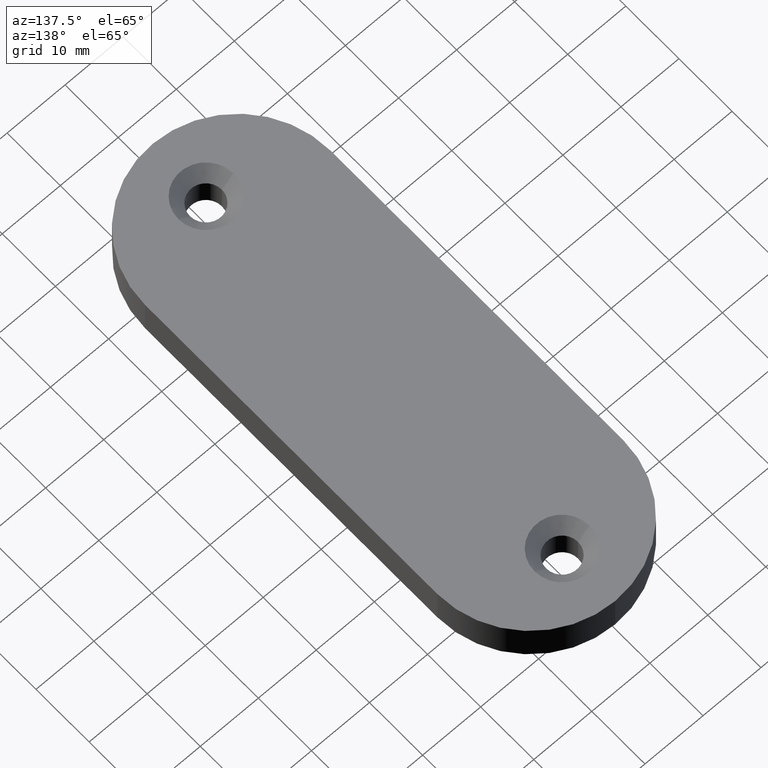
[diagram: clean part render]
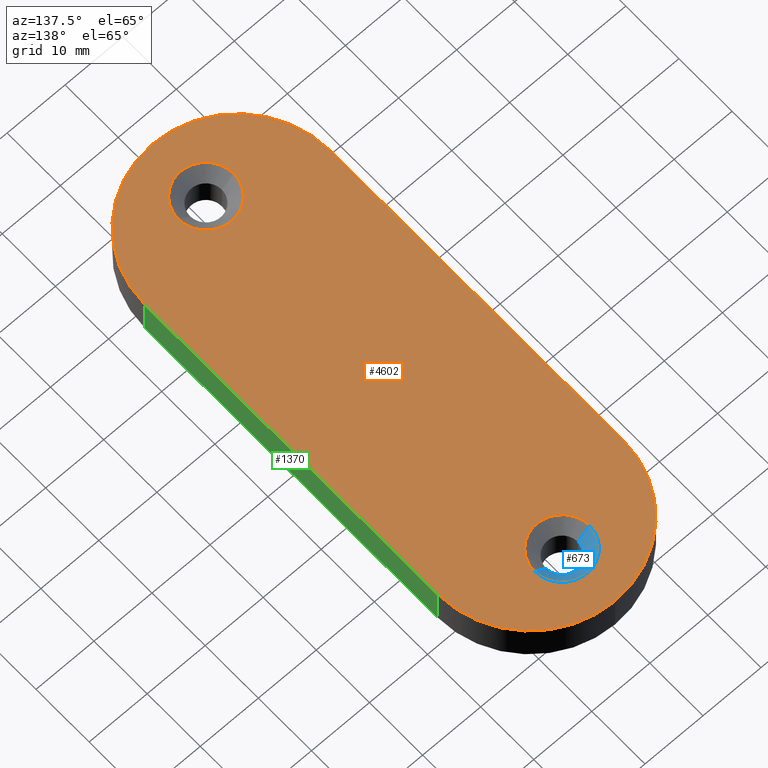
[diagram: same view with three faces highlighted in distinct colors, each labeled with its STEP entity id]
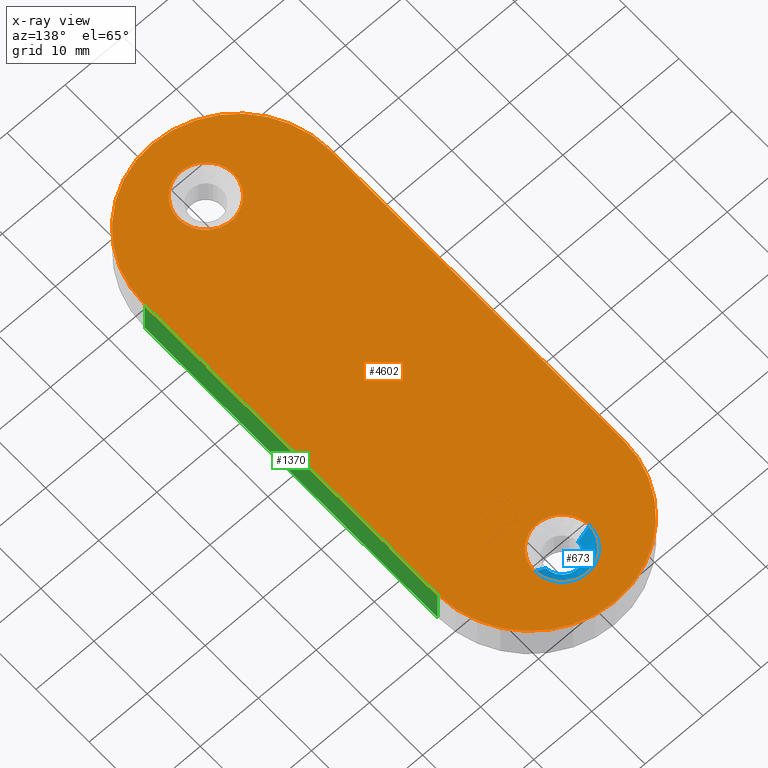
[diagram: x-ray of the same camera — body ghosted, the three highlighted faces saturated]
A machine part, auxiliary view with three faces highlighted in distinct colors.
The next image is the same camera in x-ray (body ghosted, the three faces saturated) — at least one of them is partly hidden behind the body in this view.
Their STEP definitions:

[orange] entity #4602 — the highlighted planar face has unit normal (0, 0, 1).
#166 = DIRECTION ( 'NONE',  ( 1.000000000000000000, 0.000000000000000000, 0.000000000000000000 ) ) ;
#169 = DIRECTION ( 'NONE',  ( 0.000000000000000000, -0.000000000000000000, -1.000000000000000000 ) ) ;
#346 = VERTEX_POINT ( 'NONE', #7509 ) ;
#498 = DIRECTION ( 'NONE',  ( -0.000000000000000000, 0.000000000000000000, 1.000000000000000000 ) ) ;
#519 = VERTEX_POINT ( 'NONE', #10348 ) ;
#570 = DIRECTION ( 'NONE',  ( 0.000000000000000000, -0.000000000000000000, -1.000000000000000000 ) ) ;
#654 = DIRECTION ( 'NONE',  ( 1.000000000000000000, 0.000000000000000000, 0.000000000000000000 ) ) ;
#742 = EDGE_LOOP ( 'NONE', ( #3831, #6364, #8016, #6945, #6531, #7832 ) ) ;
#858 = PLANE ( 'NONE',  #7722 ) ;
#947 = DIRECTION ( 'NONE',  ( -0.000000000000000000, 0.000000000000000000, 1.000000000000000000 ) ) ;
#1322 = VERTEX_POINT ( 'NONE', #9553 ) ;
#1451 = CARTESIAN_POINT ( 'NONE',  ( 0.000000000000000000, -27.50000000000000355, 7.000000000000000000 ) ) ;
#1484 = CARTESIAN_POINT ( 'NONE',  ( 0.000000000000000000, 0.000000000000000000, 7.000000000000000000 ) ) ;
#1599 = VERTEX_POINT ( 'NONE', #3601 ) ;
#1646 = DIRECTION ( 'NONE',  ( 0.000000000000000000, -0.000000000000000000, -1.000000000000000000 ) ) ;
#1888 = CARTESIAN_POINT ( 'NONE',  ( 0.000000000000000000, -33.50000000000000000, 7.000000000000000000 ) ) ;
#2055 = CIRCLE ( 'NONE', #9089, 16.00000000000000000 ) ;
#2238 = CARTESIAN_POINT ( 'NONE',  ( 15.99999999999999645, 27.49999999999999289, 7.000000000000000000 ) ) ;
#2461 = CARTESIAN_POINT ( 'NONE',  ( 0.000000000000000000, -33.50000000000000000, 7.000000000000000000 ) ) ;
#2490 = AXIS2_PLACEMENT_3D ( 'NONE', #2461, #1646, #8163 ) ;
#2692 = EDGE_CURVE ( 'NONE', #8049, #8827, #4928, .T. ) ;
#2862 = CARTESIAN_POINT ( 'NONE',  ( 4.750000000000031974, -33.50000000000000000, 7.000000000000000000 ) ) ;
#3030 = AXIS2_PLACEMENT_3D ( 'NONE', #9161, #947, #166 ) ;
#3044 = VERTEX_POINT ( 'NONE', #3549 ) ;
#3150 = ORIENTED_EDGE ( 'NONE', *, *, #7385, .T. ) ;
#3226 = CIRCLE ( 'NONE', #9875, 4.750000000000031974 ) ;
#3375 = CIRCLE ( 'NONE', #7472, 4.750000000000031974 ) ;
#3399 = ORIENTED_EDGE ( 'NONE', *, *, #6523, .T. ) ;
#3475 = CARTESIAN_POINT ( 'NONE',  ( -16.00000000000000711, 43.49999999999999289, 7.000000000000000000 ) ) ;
#3549 = CARTESIAN_POINT ( 'NONE',  ( -4.750000000000031974, -33.50000000000000000, 7.000000000000000000 ) ) ;
#3601 = CARTESIAN_POINT ( 'NONE',  ( 4.750000000000031974, 33.50000000000000000, 7.000000000000000000 ) ) ;
#3720 = DIRECTION ( 'NONE',  ( 1.000000000000000000, 0.000000000000000000, 0.000000000000000000 ) ) ;
#3831 = ORIENTED_EDGE ( 'NONE', *, *, #7177, .T. ) ;
#3858 = EDGE_LOOP ( 'NONE', ( #6059, #3399 ) ) ;
#3927 = CIRCLE ( 'NONE', #3030, 16.00000000000000000 ) ;
#3934 = ORIENTED_EDGE ( 'NONE', *, *, #4562, .T. ) ;
#4102 = CIRCLE ( 'NONE', #10196, 16.00000000000000000 ) ;
#4131 = CARTESIAN_POINT ( 'NONE',  ( 16.00000000000000355, -27.50000000000000355, 7.000000000000000000 ) ) ;
#4314 = CARTESIAN_POINT ( 'NONE',  ( -5.024716275243164806E-15, 27.49999999999998934, 7.000000000000000000 ) ) ;
#4347 = VECTOR ( 'NONE', #9793, 1000.000000000000000 ) ;
#4562 = EDGE_CURVE ( 'NONE', #6685, #3044, #4773, .T. ) ;
#4602 = ADVANCED_FACE ( 'NONE', ( #9396, #6462, #9158 ), #858, .T. ) ;
#4611 = CARTESIAN_POINT ( 'NONE',  ( 0.000000000000000000, 33.50000000000000000, 7.000000000000000000 ) ) ;
#4773 = CIRCLE ( 'NONE', #2490, 4.750000000000031974 ) ;
#4928 = LINE ( 'NONE', #6103, #5317 ) ;
#5037 = CARTESIAN_POINT ( 'NONE',  ( 0.000000000000000000, 33.50000000000000000, 7.000000000000000000 ) ) ;
#5317 = VECTOR ( 'NONE', #9251, 1000.000000000000000 ) ;
#5413 = CARTESIAN_POINT ( 'NONE',  ( 4.386657065688479052E-15, -27.50000000000000355, 7.000000000000000000 ) ) ;
#5511 = CARTESIAN_POINT ( 'NONE',  ( -16.00000000000000000, -27.50000000000000355, 7.000000000000000000 ) ) ;
#5541 = VERTEX_POINT ( 'NONE', #10291 ) ;
#5550 = EDGE_CURVE ( 'NONE', #1599, #5541, #7576, .T. ) ;
#6059 = ORIENTED_EDGE ( 'NONE', *, *, #5550, .T. ) ;
#6103 = CARTESIAN_POINT ( 'NONE',  ( 15.99999999999999289, 43.49999999999999289, 7.000000000000000000 ) ) ;
#6280 = DIRECTION ( 'NONE',  ( 1.000000000000000000, 0.000000000000000000, 0.000000000000000000 ) ) ;
#6364 = ORIENTED_EDGE ( 'NONE', *, *, #8815, .T. ) ;
#6462 = FACE_BOUND ( 'NONE', #10486, .T. ) ;
#6523 = EDGE_CURVE ( 'NONE', #5541, #1599, #3375, .T. ) ;
#6531 = ORIENTED_EDGE ( 'NONE', *, *, #10244, .T. ) ;
#6685 = VERTEX_POINT ( 'NONE', #2862 ) ;
#6698 = DIRECTION ( 'NONE',  ( 1.000000000000000000, 0.000000000000000000, 0.000000000000000000 ) ) ;
#6945 = ORIENTED_EDGE ( 'NONE', *, *, #9909, .T. ) ;
#7077 = DIRECTION ( 'NONE',  ( -0.000000000000000000, 0.000000000000000000, 1.000000000000000000 ) ) ;
#7099 = EDGE_CURVE ( 'NONE', #346, #8924, #10113, .T. ) ;
#7177 = EDGE_CURVE ( 'NONE', #8924, #519, #4102, .T. ) ;
#7385 = EDGE_CURVE ( 'NONE', #3044, #6685, #3226, .T. ) ;
#7472 = AXIS2_PLACEMENT_3D ( 'NONE', #5037, #169, #6698 ) ;
#7509 = CARTESIAN_POINT ( 'NONE',  ( -16.00000000000000355, 27.49999999999998579, 7.000000000000000000 ) ) ;
#7571 = DIRECTION ( 'NONE',  ( 1.000000000000000000, 0.000000000000000000, 0.000000000000000000 ) ) ;
#7576 = CIRCLE ( 'NONE', #8505, 4.750000000000031974 ) ;
#7708 = DIRECTION ( 'NONE',  ( -0.000000000000000000, 0.000000000000000000, 1.000000000000000000 ) ) ;
#7722 = AXIS2_PLACEMENT_3D ( 'NONE', #1484, #7077, #654 ) ;
#7832 = ORIENTED_EDGE ( 'NONE', *, *, #7099, .T. ) ;
#7893 = CIRCLE ( 'NONE', #9349, 16.00000000000000000 ) ;
#8016 = ORIENTED_EDGE ( 'NONE', *, *, #2692, .T. ) ;
#8049 = VERTEX_POINT ( 'NONE', #4131 ) ;
#8163 = DIRECTION ( 'NONE',  ( 1.000000000000000000, 0.000000000000000000, 0.000000000000000000 ) ) ;
#8505 = AXIS2_PLACEMENT_3D ( 'NONE', #4611, #570, #6280 ) ;
#8763 = DIRECTION ( 'NONE',  ( 1.000000000000000000, 0.000000000000000000, 0.000000000000000000 ) ) ;
#8815 = EDGE_CURVE ( 'NONE', #519, #8049, #2055, .T. ) ;
#8827 = VERTEX_POINT ( 'NONE', #2238 ) ;
#8924 = VERTEX_POINT ( 'NONE', #5511 ) ;
#9089 = AXIS2_PLACEMENT_3D ( 'NONE', #5413, #498, #3720 ) ;
#9158 = FACE_OUTER_BOUND ( 'NONE', #742, .T. ) ;
#9161 = CARTESIAN_POINT ( 'NONE',  ( -3.469446951953614189E-15, 27.49999999999998934, 7.000000000000000000 ) ) ;
#9207 = DIRECTION ( 'NONE',  ( 0.000000000000000000, -0.000000000000000000, -1.000000000000000000 ) ) ;
#9251 = DIRECTION ( 'NONE',  ( -1.595148023886719315E-16, 1.000000000000000000, -0.000000000000000000 ) ) ;
#9349 = AXIS2_PLACEMENT_3D ( 'NONE', #4314, #7708, #9380 ) ;
#9380 = DIRECTION ( 'NONE',  ( 1.000000000000000000, 0.000000000000000000, 0.000000000000000000 ) ) ;
#9396 = FACE_BOUND ( 'NONE', #3858, .T. ) ;
#9553 = CARTESIAN_POINT ( 'NONE',  ( -3.469446951953614189E-15, 43.49999999999999289, 7.000000000000000000 ) ) ;
#9793 = DIRECTION ( 'NONE',  ( 1.196361017915039486E-16, -1.000000000000000000, 0.000000000000000000 ) ) ;
#9875 = AXIS2_PLACEMENT_3D ( 'NONE', #1888, #9207, #7571 ) ;
#9909 = EDGE_CURVE ( 'NONE', #8827, #1322, #3927, .T. ) ;
#10113 = LINE ( 'NONE', #3475, #4347 ) ;
#10196 = AXIS2_PLACEMENT_3D ( 'NONE', #1451, #10450, #8763 ) ;
#10244 = EDGE_CURVE ( 'NONE', #1322, #346, #7893, .T. ) ;
#10291 = CARTESIAN_POINT ( 'NONE',  ( -4.750000000000031974, 33.50000000000000000, 7.000000000000000000 ) ) ;
#10348 = CARTESIAN_POINT ( 'NONE',  ( 0.000000000000000000, -43.50000000000000711, 7.000000000000000000 ) ) ;
#10450 = DIRECTION ( 'NONE',  ( -0.000000000000000000, 0.000000000000000000, 1.000000000000000000 ) ) ;
#10486 = EDGE_LOOP ( 'NONE', ( #3934, #3150 ) ) ;

[blue] entity #673 — the highlighted conical surface has half-angle 45 deg.
#169 = DIRECTION ( 'NONE',  ( 0.000000000000000000, -0.000000000000000000, -1.000000000000000000 ) ) ;
#491 = CARTESIAN_POINT ( 'NONE',  ( 2.750000000000000444, 33.50000000000000000, 4.999999999999985789 ) ) ;
#673 = ADVANCED_FACE ( 'NONE', ( #9194 ), #4817, .F. ) ;
#1201 = AXIS2_PLACEMENT_3D ( 'NONE', #9724, #9836, #4932 ) ;
#1388 = EDGE_CURVE ( 'NONE', #2167, #5541, #5457, .T. ) ;
#1599 = VERTEX_POINT ( 'NONE', #3601 ) ;
#2167 = VERTEX_POINT ( 'NONE', #6085 ) ;
#2372 = LINE ( 'NONE', #3400, #4376 ) ;
#2904 = VECTOR ( 'NONE', #5744, 1000.000000000000114 ) ;
#2946 = DIRECTION ( 'NONE',  ( 0.000000000000000000, 0.000000000000000000, 1.000000000000000000 ) ) ;
#3153 = VERTEX_POINT ( 'NONE', #491 ) ;
#3375 = CIRCLE ( 'NONE', #7472, 4.750000000000031974 ) ;
#3400 = CARTESIAN_POINT ( 'NONE',  ( 2.750000000000000444, 33.50000000000000000, 4.999999999999985789 ) ) ;
#3601 = CARTESIAN_POINT ( 'NONE',  ( 4.750000000000031974, 33.50000000000000000, 7.000000000000000000 ) ) ;
#3804 = CIRCLE ( 'NONE', #8602, 2.750000000000000444 ) ;
#4001 = EDGE_CURVE ( 'NONE', #3153, #1599, #2372, .T. ) ;
#4065 = CARTESIAN_POINT ( 'NONE',  ( -2.750000000000000444, 33.50000000000000000, 4.999999999999985789 ) ) ;
#4376 = VECTOR ( 'NONE', #6769, 1000.000000000000114 ) ;
#4817 = CONICAL_SURFACE ( 'NONE', #1201, 2.750000000000000444, 0.7853981633974528309 ) ;
#4932 = DIRECTION ( 'NONE',  ( 1.000000000000000000, 0.000000000000000000, 0.000000000000000000 ) ) ;
#5037 = CARTESIAN_POINT ( 'NONE',  ( 0.000000000000000000, 33.50000000000000000, 7.000000000000000000 ) ) ;
#5457 = LINE ( 'NONE', #4065, #2904 ) ;
#5541 = VERTEX_POINT ( 'NONE', #10291 ) ;
#5647 = EDGE_LOOP ( 'NONE', ( #8081, #9255, #7765, #10272 ) ) ;
#5744 = DIRECTION ( 'NONE',  ( -0.7071067811865506814, 8.659560562354971069E-17, 0.7071067811865443531 ) ) ;
#6085 = CARTESIAN_POINT ( 'NONE',  ( -2.750000000000000444, 33.50000000000000000, 4.999999999999985789 ) ) ;
#6238 = CARTESIAN_POINT ( 'NONE',  ( 0.000000000000000000, 33.50000000000000000, 4.999999999999985789 ) ) ;
#6523 = EDGE_CURVE ( 'NONE', #5541, #1599, #3375, .T. ) ;
#6698 = DIRECTION ( 'NONE',  ( 1.000000000000000000, 0.000000000000000000, 0.000000000000000000 ) ) ;
#6769 = DIRECTION ( 'NONE',  ( 0.7071067811865506814, 0.000000000000000000, 0.7071067811865443531 ) ) ;
#7472 = AXIS2_PLACEMENT_3D ( 'NONE', #5037, #169, #6698 ) ;
#7765 = ORIENTED_EDGE ( 'NONE', *, *, #4001, .T. ) ;
#7928 = DIRECTION ( 'NONE',  ( 1.000000000000000000, 0.000000000000000000, 0.000000000000000000 ) ) ;
#8081 = ORIENTED_EDGE ( 'NONE', *, *, #1388, .F. ) ;
#8602 = AXIS2_PLACEMENT_3D ( 'NONE', #6238, #2946, #7928 ) ;
#9194 = FACE_OUTER_BOUND ( 'NONE', #5647, .T. ) ;
#9255 = ORIENTED_EDGE ( 'NONE', *, *, #10378, .F. ) ;
#9724 = CARTESIAN_POINT ( 'NONE',  ( 0.000000000000000000, 33.50000000000000000, 4.999999999999985789 ) ) ;
#9836 = DIRECTION ( 'NONE',  ( 0.000000000000000000, 0.000000000000000000, 1.000000000000000000 ) ) ;
#10272 = ORIENTED_EDGE ( 'NONE', *, *, #6523, .F. ) ;
#10291 = CARTESIAN_POINT ( 'NONE',  ( -4.750000000000031974, 33.50000000000000000, 7.000000000000000000 ) ) ;
#10378 = EDGE_CURVE ( 'NONE', #3153, #2167, #3804, .T. ) ;

[green] entity #1370 — the highlighted planar face has unit normal (-1, -0, 0).
#71 = CARTESIAN_POINT ( 'NONE',  ( 16.00000000000000355, -27.50000000000000355, 0.000000000000000000 ) ) ;
#279 = LINE ( 'NONE', #1948, #1828 ) ;
#577 = CARTESIAN_POINT ( 'NONE',  ( 16.00000000000000355, -27.50000000000000355, 7.000000000000000000 ) ) ;
#667 = VERTEX_POINT ( 'NONE', #71 ) ;
#780 = PLANE ( 'NONE',  #2222 ) ;
#1268 = DIRECTION ( 'NONE',  ( -1.595148023886719315E-16, 1.000000000000000000, -0.000000000000000000 ) ) ;
#1370 = ADVANCED_FACE ( 'NONE', ( #3651 ), #780, .F. ) ;
#1399 = DIRECTION ( 'NONE',  ( 0.000000000000000000, 0.000000000000000000, -1.000000000000000000 ) ) ;
#1828 = VECTOR ( 'NONE', #1268, 1000.000000000000000 ) ;
#1948 = CARTESIAN_POINT ( 'NONE',  ( 15.99999999999999289, 43.49999999999999289, 0.000000000000000000 ) ) ;
#2222 = AXIS2_PLACEMENT_3D ( 'NONE', #4033, #9763, #5666 ) ;
#2238 = CARTESIAN_POINT ( 'NONE',  ( 15.99999999999999645, 27.49999999999999289, 7.000000000000000000 ) ) ;
#2692 = EDGE_CURVE ( 'NONE', #8049, #8827, #4928, .T. ) ;
#3525 = CARTESIAN_POINT ( 'NONE',  ( 15.99999999999999645, 27.49999999999999289, 0.000000000000000000 ) ) ;
#3651 = FACE_OUTER_BOUND ( 'NONE', #7483, .T. ) ;
#3850 = CARTESIAN_POINT ( 'NONE',  ( 15.99999999999999645, 27.49999999999999289, 7.000000000000000000 ) ) ;
#4033 = CARTESIAN_POINT ( 'NONE',  ( 15.99999999999999289, 43.49999999999999289, 7.000000000000000000 ) ) ;
#4116 = LINE ( 'NONE', #577, #4759 ) ;
#4131 = CARTESIAN_POINT ( 'NONE',  ( 16.00000000000000355, -27.50000000000000355, 7.000000000000000000 ) ) ;
#4517 = ORIENTED_EDGE ( 'NONE', *, *, #8225, .T. ) ;
#4759 = VECTOR ( 'NONE', #1399, 1000.000000000000000 ) ;
#4928 = LINE ( 'NONE', #6103, #5317 ) ;
#5116 = VECTOR ( 'NONE', #5589, 1000.000000000000000 ) ;
#5317 = VECTOR ( 'NONE', #9251, 1000.000000000000000 ) ;
#5589 = DIRECTION ( 'NONE',  ( -0.000000000000000000, -0.000000000000000000, 1.000000000000000000 ) ) ;
#5666 = DIRECTION ( 'NONE',  ( 1.595148023886719561E-16, -1.000000000000000000, 0.000000000000000000 ) ) ;
#5944 = EDGE_CURVE ( 'NONE', #8049, #667, #4116, .T. ) ;
#6103 = CARTESIAN_POINT ( 'NONE',  ( 15.99999999999999289, 43.49999999999999289, 7.000000000000000000 ) ) ;
#7165 = ORIENTED_EDGE ( 'NONE', *, *, #8903, .T. ) ;
#7483 = EDGE_LOOP ( 'NONE', ( #8372, #10551, #4517, #7165 ) ) ;
#7535 = LINE ( 'NONE', #3850, #5116 ) ;
#8049 = VERTEX_POINT ( 'NONE', #4131 ) ;
#8225 = EDGE_CURVE ( 'NONE', #667, #8679, #279, .T. ) ;
#8372 = ORIENTED_EDGE ( 'NONE', *, *, #2692, .F. ) ;
#8679 = VERTEX_POINT ( 'NONE', #3525 ) ;
#8827 = VERTEX_POINT ( 'NONE', #2238 ) ;
#8903 = EDGE_CURVE ( 'NONE', #8679, #8827, #7535, .T. ) ;
#9251 = DIRECTION ( 'NONE',  ( -1.595148023886719315E-16, 1.000000000000000000, -0.000000000000000000 ) ) ;
#9763 = DIRECTION ( 'NONE',  ( -1.000000000000000000, -1.595148023886719561E-16, 0.000000000000000000 ) ) ;
#10551 = ORIENTED_EDGE ( 'NONE', *, *, #5944, .T. ) ;